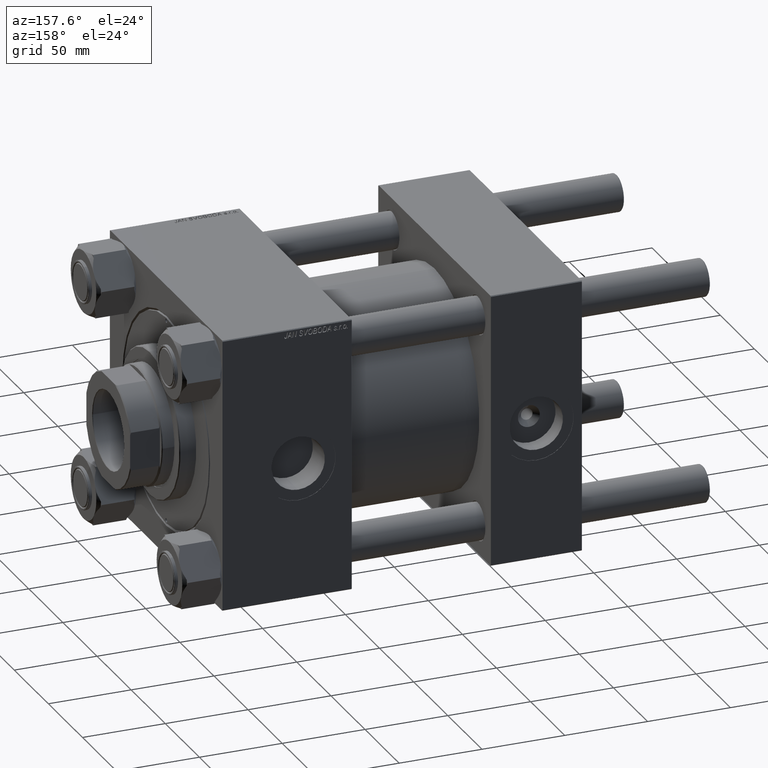
[diagram: clean part render]
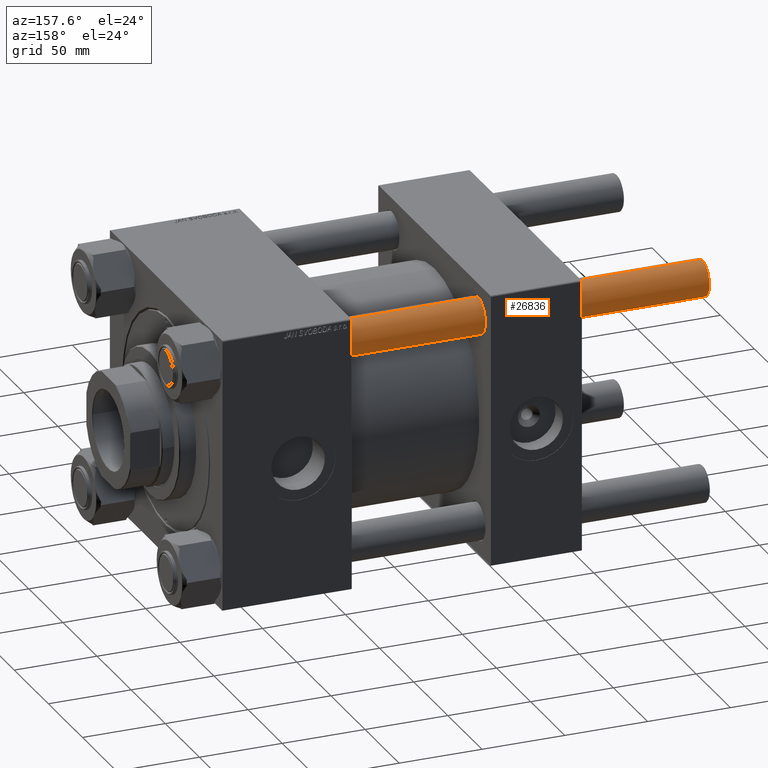
[diagram: same view with one face highlighted and labeled with its STEP entity id]
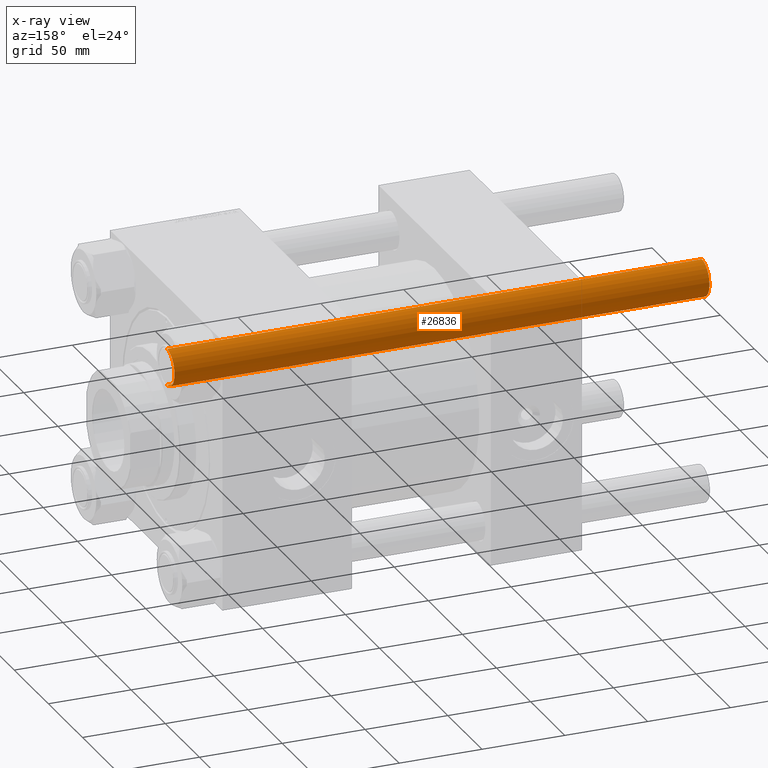
[diagram: x-ray of the same camera — body ghosted, the highlighted face saturated]
A machine part, auxiliary view. The second image highlights one B-rep face of the part: STEP entity #26836.
The next image is the same camera in x-ray: the body ghosted, the highlighted face saturated — about 0% of this face is hidden behind the body in this view.
In plain terms, the highlighted cylindrical surface (edge-blend (fillet) strip) has radius 11 mm, axis along (-1, -0, -0).
Its self-contained STEP definition (entity closure, byte-faithful):
#682 = CARTESIAN_POINT ( 'NONE',  ( 0.000000000000000000, 0.000000000000000000, 0.5000000000000559552 ) ) ;
#2770 = DIRECTION ( 'NONE',  ( -0.000000000000000000, -0.000000000000000000, -1.000000000000000000 ) ) ;
#3523 = LINE ( 'NONE', #42817, #5309 ) ;
#5309 = VECTOR ( 'NONE', #2770, 1000.000000000000000 ) ;
#7218 = DIRECTION ( 'NONE',  ( 0.000000000000000000, 0.000000000000000000, -1.000000000000000000 ) ) ;
#8022 = ORIENTED_EDGE ( 'NONE', *, *, #47793, .T. ) ;
#10906 = EDGE_CURVE ( 'NONE', #26764, #31371, #16947, .T. ) ;
#11537 = DIRECTION ( 'NONE',  ( 1.000000000000000000, 0.000000000000000000, 0.000000000000000000 ) ) ;
#11969 = CARTESIAN_POINT ( 'NONE',  ( -11.00000000000000000, 0.000000000000000000, 323.5000000000000000 ) ) ;
#16032 = CYLINDRICAL_SURFACE ( 'NONE', #20262, 11.00000000000000000 ) ;
#16947 = LINE ( 'NONE', #32501, #41882 ) ;
#19391 = VERTEX_POINT ( 'NONE', #35428 ) ;
#19872 = FACE_OUTER_BOUND ( 'NONE', #47376, .T. ) ;
#20262 = AXIS2_PLACEMENT_3D ( 'NONE', #40006, #27775, #36178 ) ;
#22681 = AXIS2_PLACEMENT_3D ( 'NONE', #38581, #7218, #11537 ) ;
#24088 = ORIENTED_EDGE ( 'NONE', *, *, #46993, .T. ) ;
#25113 = CIRCLE ( 'NONE', #22681, 11.00000000000000000 ) ;
#25912 = EDGE_CURVE ( 'NONE', #26764, #27220, #25113, .T. ) ;
#26764 = VERTEX_POINT ( 'NONE', #11969 ) ;
#26836 = ADVANCED_FACE ( 'NONE', ( #19872 ), #16032, .T. ) ;
#27004 = ORIENTED_EDGE ( 'NONE', *, *, #10906, .F. ) ;
#27220 = VERTEX_POINT ( 'NONE', #45301 ) ;
#27240 = DIRECTION ( 'NONE',  ( 1.000000000000000000, 0.000000000000000000, 0.000000000000000000 ) ) ;
#27775 = DIRECTION ( 'NONE',  ( -0.000000000000000000, -0.000000000000000000, -1.000000000000000000 ) ) ;
#31065 = DIRECTION ( 'NONE',  ( -0.000000000000000000, -0.000000000000000000, 1.000000000000000000 ) ) ;
#31330 = DIRECTION ( 'NONE',  ( -0.000000000000000000, -0.000000000000000000, -1.000000000000000000 ) ) ;
#31371 = VERTEX_POINT ( 'NONE', #39485 ) ;
#31387 = AXIS2_PLACEMENT_3D ( 'NONE', #682, #31065, #27240 ) ;
#32501 = CARTESIAN_POINT ( 'NONE',  ( -11.00000000000000000, 0.000000000000000000, 324.0000000000000000 ) ) ;
#35428 = CARTESIAN_POINT ( 'NONE',  ( 11.00000000000000000, 1.347111479062088405E-15, 0.5000000000000559552 ) ) ;
#36178 = DIRECTION ( 'NONE',  ( -1.000000000000000000, 0.000000000000000000, 0.000000000000000000 ) ) ;
#37909 = CIRCLE ( 'NONE', #31387, 11.00000000000000000 ) ;
#38581 = CARTESIAN_POINT ( 'NONE',  ( 0.000000000000000000, 0.000000000000000000, 323.5000000000000000 ) ) ;
#39485 = CARTESIAN_POINT ( 'NONE',  ( -11.00000000000000000, 0.000000000000000000, 0.5000000000000559552 ) ) ;
#40006 = CARTESIAN_POINT ( 'NONE',  ( 0.000000000000000000, 0.000000000000000000, 324.0000000000000000 ) ) ;
#41882 = VECTOR ( 'NONE', #31330, 1000.000000000000000 ) ;
#42817 = CARTESIAN_POINT ( 'NONE',  ( 11.00000000000000000, 1.347111479062088405E-15, 324.0000000000000000 ) ) ;
#45301 = CARTESIAN_POINT ( 'NONE',  ( 11.00000000000000000, 1.347111479062088405E-15, 323.5000000000000000 ) ) ;
#46993 = EDGE_CURVE ( 'NONE', #19391, #31371, #37909, .T. ) ;
#47376 = EDGE_LOOP ( 'NONE', ( #49703, #8022, #24088, #27004 ) ) ;
#47793 = EDGE_CURVE ( 'NONE', #27220, #19391, #3523, .T. ) ;
#49703 = ORIENTED_EDGE ( 'NONE', *, *, #25912, .T. ) ;